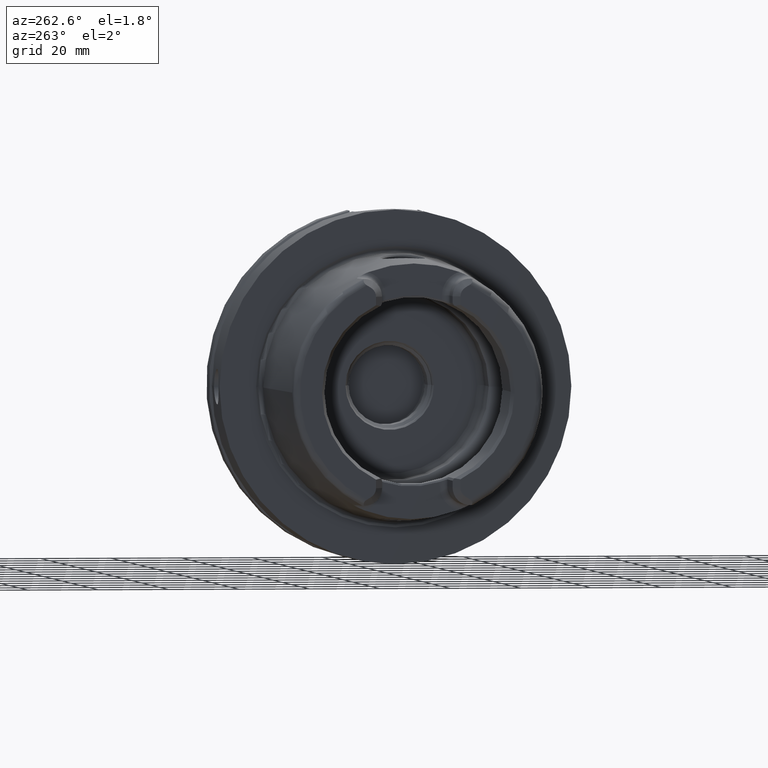
[diagram: clean part render]
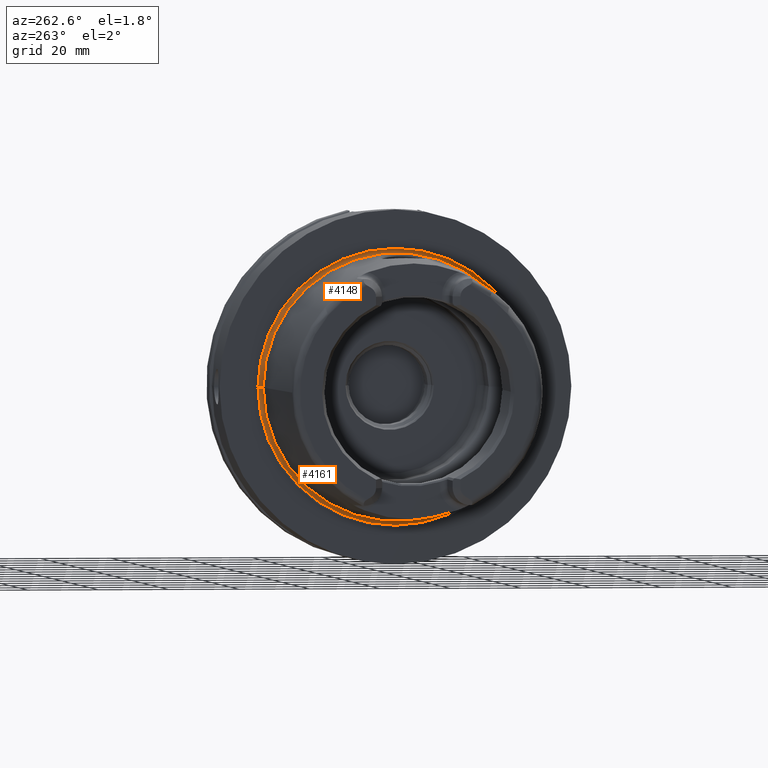
[diagram: same view with one multi-face feature highlighted, each face labeled with its STEP entity id]
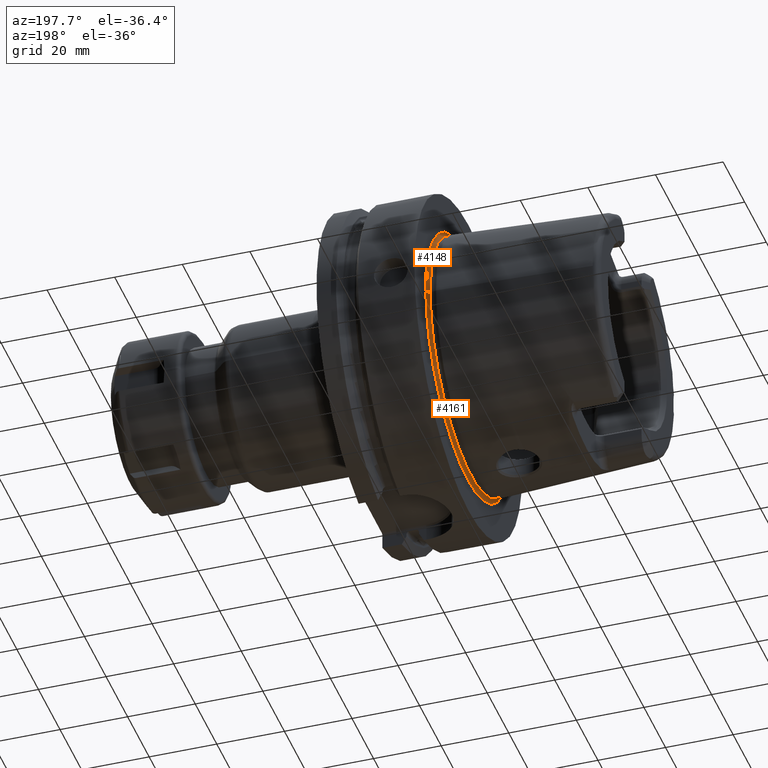
[diagram: same view with one multi-face feature highlighted, each face labeled with its STEP entity id]
A machine part, auxiliary view. The highlighted faces form ONE feature: a constant-radius fillet chain: 2 tangent blend faces with common blend radius 1 mm. The faces share edges in the B-rep.
A second angle (auxiliary view) of the same feature is appended — it is thin or edge-on in the first view.
Their STEP definitions:
[1] entity #4148 (Torus):
#872=CARTESIAN_POINT('',(-7.005712886803E-1,0.E0,0.E0));
#873=DIRECTION('',(-1.E0,0.E0,0.E0));
#874=DIRECTION('',(0.E0,-1.E0,0.E0));
#875=AXIS2_PLACEMENT_3D('',#872,#873,#874);
#877=CARTESIAN_POINT('',(2.298462793018E-1,0.E0,0.E0));
#878=DIRECTION('',(-1.E0,0.E0,0.E0));
#879=DIRECTION('',(0.E0,-1.E0,0.E0));
#880=AXIS2_PLACEMENT_3D('',#877,#878,#879);
#882=CARTESIAN_POINT('',(-7.005712886803E-1,3.868225E1,0.E0));
#883=DIRECTION('',(0.E0,0.E0,-1.E0));
#884=DIRECTION('',(9.304175679820E-1,3.665012267243E-1,0.E0));
#885=AXIS2_PLACEMENT_3D('',#882,#883,#884);
#887=CARTESIAN_POINT('',(-7.005712886803E-1,-3.868225E1,0.E0));
#888=DIRECTION('',(0.E0,0.E0,1.E0));
#889=DIRECTION('',(9.304175679820E-1,-3.665012267243E-1,0.E0));
#890=AXIS2_PLACEMENT_3D('',#887,#888,#889);
#2763=CARTESIAN_POINT('',(2.298462793018E-1,-3.904875122672E1,0.E0));
#2764=CARTESIAN_POINT('',(-7.005712886803E-1,-3.768225E1,0.E0));
#2765=VERTEX_POINT('',#2763);
#2766=VERTEX_POINT('',#2764);
#2771=CARTESIAN_POINT('',(2.298462793018E-1,3.904875122672E1,0.E0));
#2772=CARTESIAN_POINT('',(-7.005712886803E-1,3.768225E1,0.E0));
#2773=VERTEX_POINT('',#2771);
#2774=VERTEX_POINT('',#2772);
#4134=CARTESIAN_POINT('',(-7.005712886803E-1,0.E0,0.E0));
#4135=DIRECTION('',(-1.E0,0.E0,0.E0));
#4136=DIRECTION('',(0.E0,1.E0,0.E0));
#4137=AXIS2_PLACEMENT_3D('',#4134,#4135,#4136);
#4138=TOROIDAL_SURFACE('',#4137,3.868225E1,1.E0);
#4140=ORIENTED_EDGE('',*,*,#4139,.T.);
#4141=ORIENTED_EDGE('',*,*,#4129,.T.);
#4143=ORIENTED_EDGE('',*,*,#4142,.F.);
#4145=ORIENTED_EDGE('',*,*,#4144,.F.);
#4146=EDGE_LOOP('',(#4140,#4141,#4143,#4145));
#4147=FACE_OUTER_BOUND('',#4146,.F.);
#4148=ADVANCED_FACE('',(#4147),#4138,.F.);
#876=CIRCLE('',#875,3.768225E1);
#881=CIRCLE('',#880,3.904875122672E1);
#886=CIRCLE('',#885,1.E0);
#891=CIRCLE('',#890,1.E0);
#4129=EDGE_CURVE('',#2766,#2774,#876,.T.);
#4139=EDGE_CURVE('',#2765,#2766,#891,.T.);
#4142=EDGE_CURVE('',#2773,#2774,#886,.T.);
#4144=EDGE_CURVE('',#2765,#2773,#881,.T.);
[2] entity #4161 (Torus):
#867=CARTESIAN_POINT('',(-7.005712886803E-1,0.E0,0.E0));
#868=DIRECTION('',(-1.E0,0.E0,0.E0));
#869=DIRECTION('',(0.E0,1.E0,0.E0));
#870=AXIS2_PLACEMENT_3D('',#867,#868,#869);
#882=CARTESIAN_POINT('',(-7.005712886803E-1,3.868225E1,0.E0));
#883=DIRECTION('',(0.E0,0.E0,-1.E0));
#884=DIRECTION('',(9.304175679820E-1,3.665012267243E-1,0.E0));
#885=AXIS2_PLACEMENT_3D('',#882,#883,#884);
#887=CARTESIAN_POINT('',(-7.005712886803E-1,-3.868225E1,0.E0));
#888=DIRECTION('',(0.E0,0.E0,1.E0));
#889=DIRECTION('',(9.304175679820E-1,-3.665012267243E-1,0.E0));
#890=AXIS2_PLACEMENT_3D('',#887,#888,#889);
#892=CARTESIAN_POINT('',(2.298462793018E-1,0.E0,0.E0));
#893=DIRECTION('',(-1.E0,0.E0,0.E0));
#894=DIRECTION('',(0.E0,1.E0,0.E0));
#895=AXIS2_PLACEMENT_3D('',#892,#893,#894);
#2763=CARTESIAN_POINT('',(2.298462793018E-1,-3.904875122672E1,0.E0));
#2764=CARTESIAN_POINT('',(-7.005712886803E-1,-3.768225E1,0.E0));
#2765=VERTEX_POINT('',#2763);
#2766=VERTEX_POINT('',#2764);
#2771=CARTESIAN_POINT('',(2.298462793018E-1,3.904875122672E1,0.E0));
#2772=CARTESIAN_POINT('',(-7.005712886803E-1,3.768225E1,0.E0));
#2773=VERTEX_POINT('',#2771);
#2774=VERTEX_POINT('',#2772);
#4149=CARTESIAN_POINT('',(-7.005712886803E-1,0.E0,0.E0));
#4150=DIRECTION('',(-1.E0,0.E0,0.E0));
#4151=DIRECTION('',(0.E0,-1.E0,0.E0));
#4152=AXIS2_PLACEMENT_3D('',#4149,#4150,#4151);
#4153=TOROIDAL_SURFACE('',#4152,3.868225E1,1.E0);
#4154=ORIENTED_EDGE('',*,*,#4142,.T.);
#4155=ORIENTED_EDGE('',*,*,#4116,.T.);
#4156=ORIENTED_EDGE('',*,*,#4139,.F.);
#4158=ORIENTED_EDGE('',*,*,#4157,.F.);
#4159=EDGE_LOOP('',(#4154,#4155,#4156,#4158));
#4160=FACE_OUTER_BOUND('',#4159,.F.);
#4161=ADVANCED_FACE('',(#4160),#4153,.F.);
#871=CIRCLE('',#870,3.768225E1);
#886=CIRCLE('',#885,1.E0);
#891=CIRCLE('',#890,1.E0);
#896=CIRCLE('',#895,3.904875122672E1);
#4116=EDGE_CURVE('',#2774,#2766,#871,.T.);
#4139=EDGE_CURVE('',#2765,#2766,#891,.T.);
#4142=EDGE_CURVE('',#2773,#2774,#886,.T.);
#4157=EDGE_CURVE('',#2773,#2765,#896,.T.);